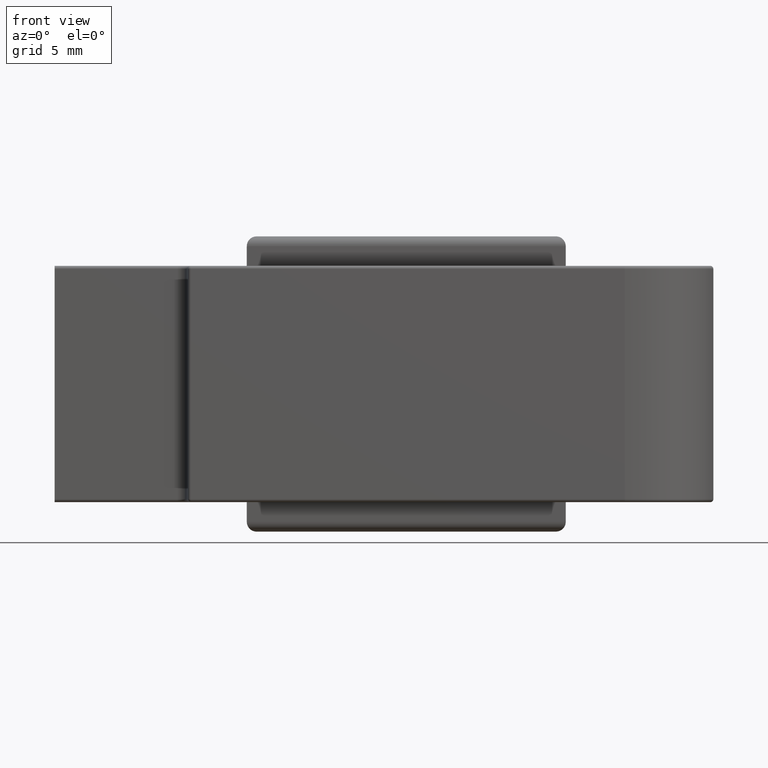
[diagram: clean part render]
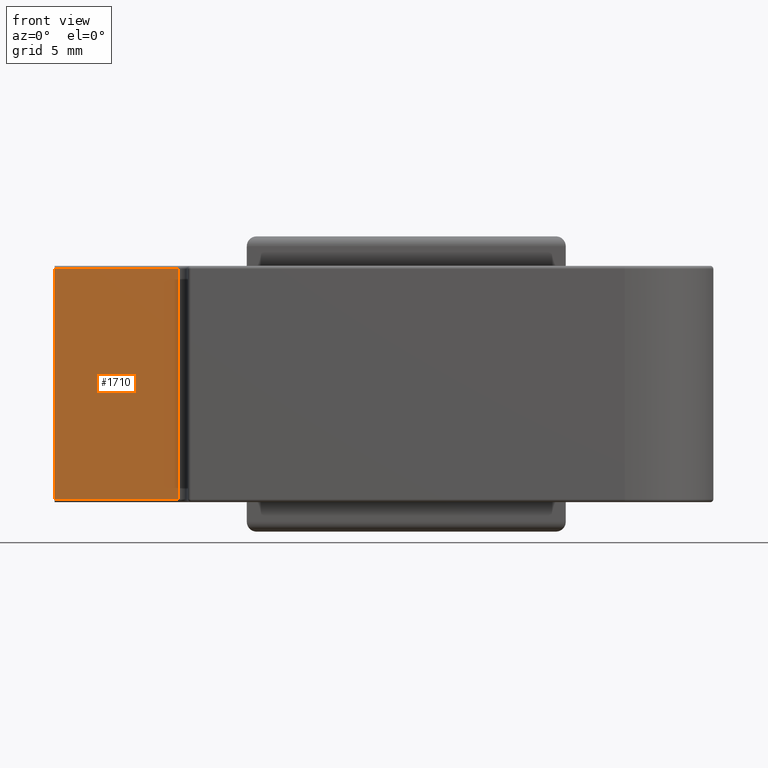
[diagram: same view with one face highlighted and labeled with its STEP entity id]
A machine part, front view. The second image highlights one B-rep face of the part: STEP entity #1710.
In plain terms, the highlighted planar face has unit normal (-0, 1, -0).
Its self-contained STEP definition (entity closure, byte-faithful):
#178 = DIRECTION ( 'NONE',  ( -0.000000000000000000, 6.162975822039132834E-33, 1.000000000000000000 ) ) ;
#216 = ORIENTED_EDGE ( 'NONE', *, *, #817, .T. ) ;
#296 = CARTESIAN_POINT ( 'NONE',  ( -6.760000000000050413, -2.899999999999999911, 12.00000000000003197 ) ) ;
#308 = LINE ( 'NONE', #954, #807 ) ;
#447 = CARTESIAN_POINT ( 'NONE',  ( -6.760000000000046860, -2.899999999999999911, 0.1500000000000042966 ) ) ;
#621 = VECTOR ( 'NONE', #178, 1000.000000000000000 ) ;
#637 = ORIENTED_EDGE ( 'NONE', *, *, #1944, .T. ) ;
#651 = DIRECTION ( 'NONE',  ( -1.000000000000000000, -2.298859303523532316E-32, -0.000000000000000000 ) ) ;
#797 = VERTEX_POINT ( 'NONE', #1628 ) ;
#800 = VERTEX_POINT ( 'NONE', #447 ) ;
#807 = VECTOR ( 'NONE', #1444, 1000.000000000000000 ) ;
#817 = EDGE_CURVE ( 'NONE', #797, #1921, #1789, .T. ) ;
#927 = ORIENTED_EDGE ( 'NONE', *, *, #1868, .T. ) ;
#954 = CARTESIAN_POINT ( 'NONE',  ( -6.760000000000050413, -2.899999999999999911, 12.00000000000003197 ) ) ;
#1007 = AXIS2_PLACEMENT_3D ( 'NONE', #296, #1649, #1157 ) ;
#1013 = VECTOR ( 'NONE', #651, 1000.000000000000000 ) ;
#1157 = DIRECTION ( 'NONE',  ( 0.000000000000000000, 6.162975822039132834E-33, 1.000000000000000000 ) ) ;
#1192 = CARTESIAN_POINT ( 'NONE',  ( -6.760000000000050413, -2.899999999999999911, 11.85000000000002629 ) ) ;
#1236 = EDGE_LOOP ( 'NONE', ( #927, #216, #2077, #637 ) ) ;
#1393 = LINE ( 'NONE', #1745, #1863 ) ;
#1444 = DIRECTION ( 'NONE',  ( 0.000000000000000000, -6.162975822039132834E-33, -1.000000000000000000 ) ) ;
#1507 = VERTEX_POINT ( 'NONE', #1891 ) ;
#1549 = FACE_OUTER_BOUND ( 'NONE', #1236, .T. ) ;
#1628 = CARTESIAN_POINT ( 'NONE',  ( -0.5000000000000247580, -2.899999999999999911, 11.85000000000002629 ) ) ;
#1649 = DIRECTION ( 'NONE',  ( -1.663310252921208862E-33, 1.000000000000000000, -6.162975822039132834E-33 ) ) ;
#1659 = EDGE_CURVE ( 'NONE', #1921, #800, #308, .T. ) ;
#1710 = ADVANCED_FACE ( 'NONE', ( #1549 ), #2150, .F. ) ;
#1719 = DIRECTION ( 'NONE',  ( 1.000000000000000000, 2.298859303523532316E-32, 0.000000000000000000 ) ) ;
#1745 = CARTESIAN_POINT ( 'NONE',  ( -0.5000000000000004441, -2.899999999999999911, 0.1499999999999973577 ) ) ;
#1789 = LINE ( 'NONE', #1814, #1013 ) ;
#1814 = CARTESIAN_POINT ( 'NONE',  ( -6.760000000000050413, -2.899999999999999911, 11.85000000000002629 ) ) ;
#1842 = LINE ( 'NONE', #2036, #621 ) ;
#1863 = VECTOR ( 'NONE', #1719, 1000.000000000000000 ) ;
#1868 = EDGE_CURVE ( 'NONE', #1507, #797, #1842, .T. ) ;
#1891 = CARTESIAN_POINT ( 'NONE',  ( -0.5000000000000004441, -2.899999999999999911, 0.1499999999999973577 ) ) ;
#1921 = VERTEX_POINT ( 'NONE', #1192 ) ;
#1944 = EDGE_CURVE ( 'NONE', #800, #1507, #1393, .T. ) ;
#2036 = CARTESIAN_POINT ( 'NONE',  ( -0.5000000000000247580, -2.899999999999999911, 12.00000000000003197 ) ) ;
#2077 = ORIENTED_EDGE ( 'NONE', *, *, #1659, .T. ) ;
#2150 = PLANE ( 'NONE',  #1007 ) ;